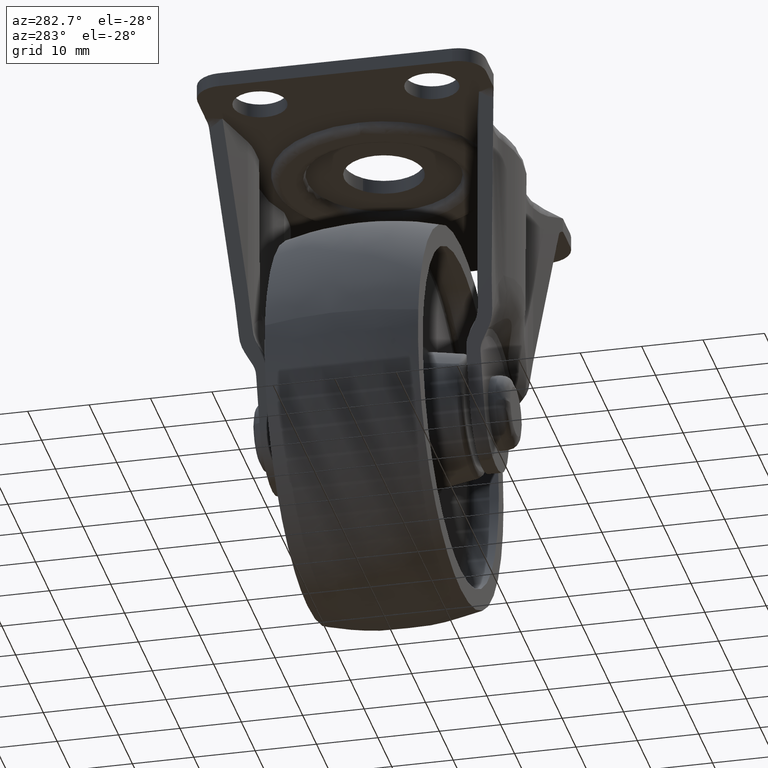
[diagram: clean part render]
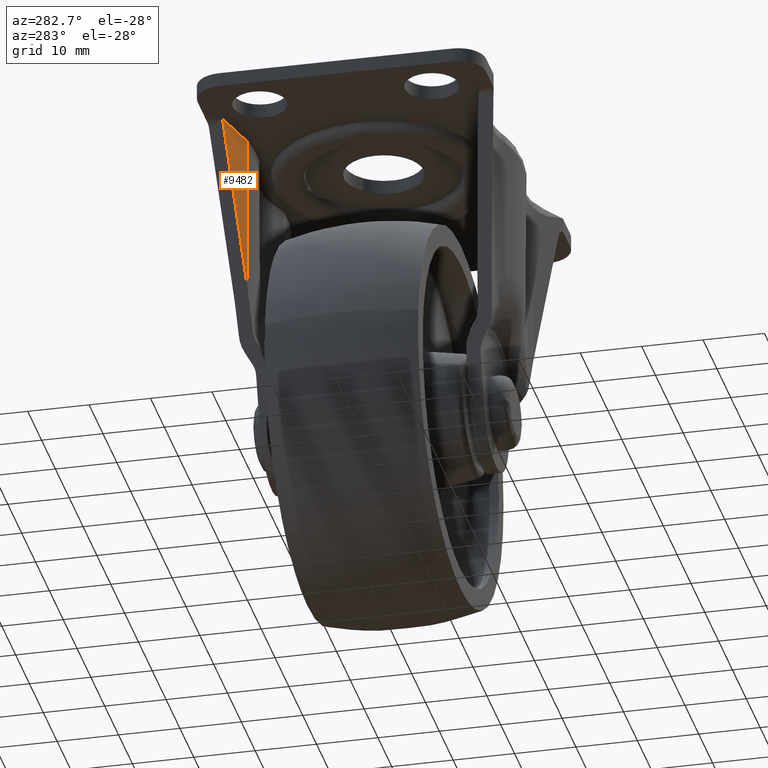
[diagram: same view with one face highlighted and labeled with its STEP entity id]
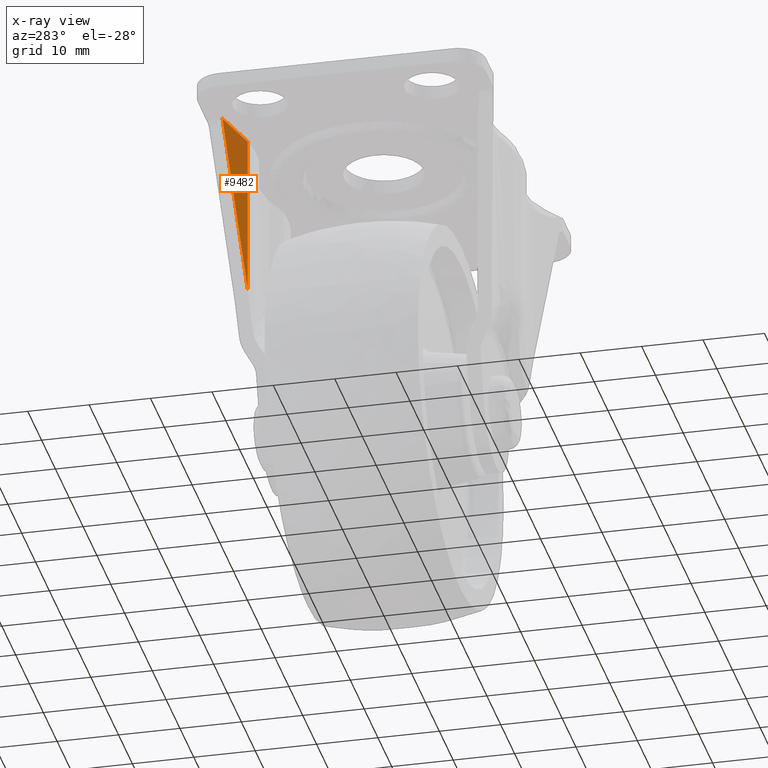
[diagram: x-ray of the same camera — body ghosted, the highlighted face saturated]
A machine part, auxiliary view. The second image highlights one B-rep face of the part: STEP entity #9482.
The next image is the same camera in x-ray: the body ghosted, the highlighted face saturated — about 0% of this face is hidden behind the body in this view.
In plain terms, the highlighted face is a freeform B-spline surface patch.
Its self-contained STEP definition (entity closure, byte-faithful):
#5954=CARTESIAN_POINT('',(-24.074129969032700,20.885428737203551,45.200000000000003));
#5955=VERTEX_POINT('',#5954);
#9456=CARTESIAN_POINT('',(-15.151024934507261,18.581070297450569,17.316317116626799));
#9457=CARTESIAN_POINT('',(-24.498634612821220,20.995055470817402,17.316317116626799));
#9458=CARTESIAN_POINT('',(-15.151024934507261,18.581070297450569,46.526530459974509));
#9459=CARTESIAN_POINT('',(-24.498634612821220,20.995055470817402,46.526530459974509));
#9460=B_SPLINE_SURFACE_WITH_KNOTS('',1,1,((#9456,#9458),(#9457,#9459)),.UNSPECIFIED.,.F.,.F.,.U.,(2,2),(2,2),(0.0,9.654280455598119),(0.0,29.210213343347711),.UNSPECIFIED.);
#9461=CARTESIAN_POINT('',(-15.575529882229400,18.690697109554151,18.642846864282951));
#9462=VERTEX_POINT('',#9461);
#9463=CARTESIAN_POINT('',(-15.575529882229400,18.690697109554151,45.200000000000003));
#9464=VERTEX_POINT('',#9463);
#9465=CARTESIAN_POINT('',(-15.575529882229400,18.690697109554151,18.642846864282951));
#9466=CARTESIAN_POINT('',(-15.575529882229400,18.690697109554151,45.200000000000003));
#9467=QUASI_UNIFORM_CURVE('',1,(#9465,#9466),.UNSPECIFIED.,.F.,.U.);
#9468=EDGE_CURVE('',#9462,#9464,#9467,.T.);
#9469=ORIENTED_EDGE('',*,*,#9468,.T.);
#9470=CARTESIAN_POINT('',(-15.575529882229400,18.690697109554151,45.200000000000003));
#9471=CARTESIAN_POINT('',(-24.074129969032700,20.885428737203551,45.200000000000003));
#9472=QUASI_UNIFORM_CURVE('',1,(#9470,#9471),.UNSPECIFIED.,.F.,.U.);
#9473=EDGE_CURVE('',#9464,#5955,#9472,.T.);
#9474=ORIENTED_EDGE('',*,*,#9473,.T.);
#9475=CARTESIAN_POINT('',(-15.575529882229400,18.690697109554151,18.642846864282951));
#9476=CARTESIAN_POINT('',(-24.074129969032700,20.885428737203551,45.200000000000003));
#9477=QUASI_UNIFORM_CURVE('',1,(#9475,#9476),.UNSPECIFIED.,.F.,.U.);
#9478=EDGE_CURVE('',#9462,#5955,#9477,.T.);
#9479=ORIENTED_EDGE('',*,*,#9478,.F.);
#9480=EDGE_LOOP('',(#9469,#9474,#9479));
#9481=FACE_OUTER_BOUND('',#9480,.T.);
#9482=ADVANCED_FACE('',(#9481),#9460,.F.);